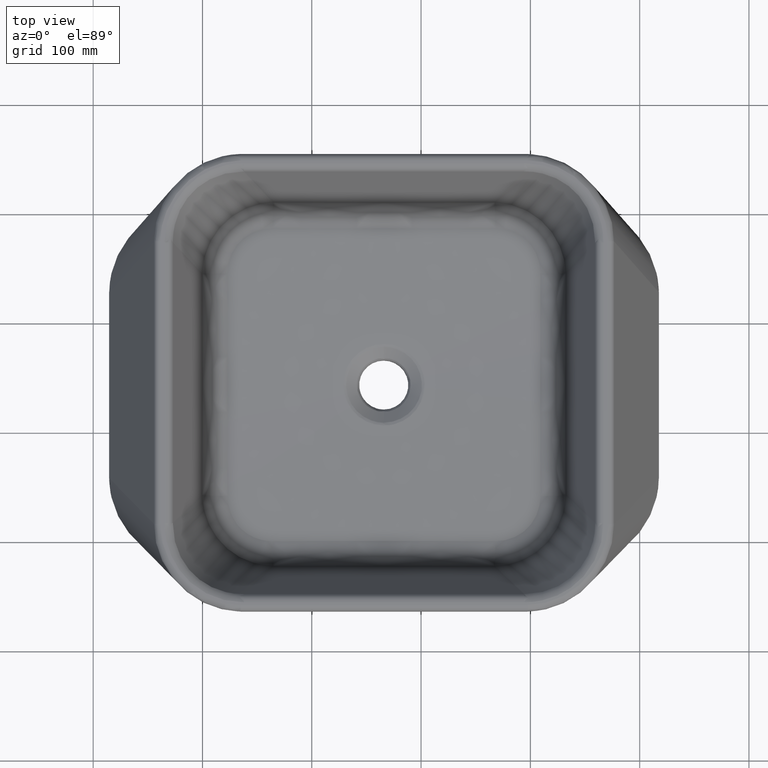
[diagram: clean part render]
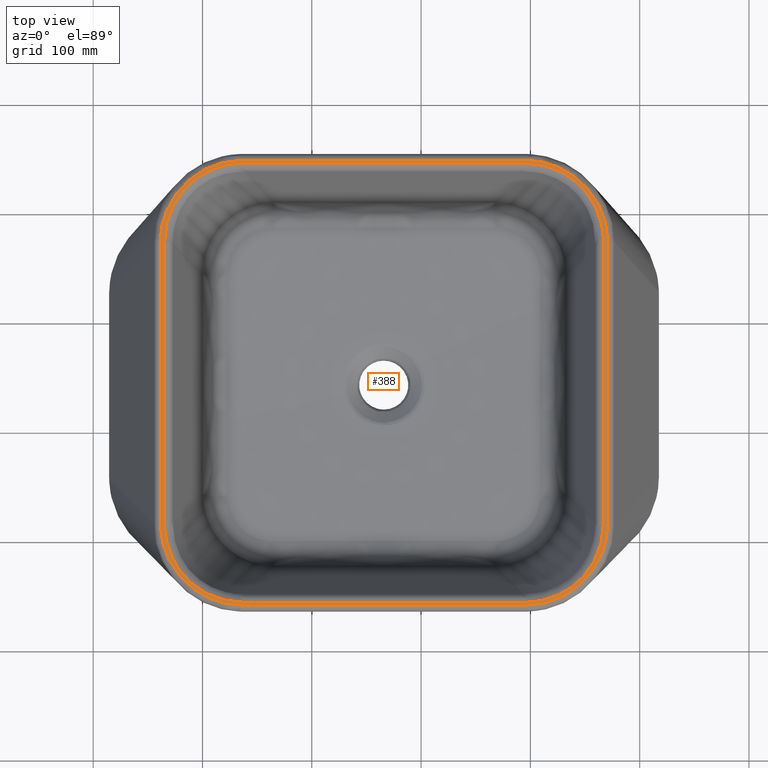
[diagram: same view with one face highlighted and labeled with its STEP entity id]
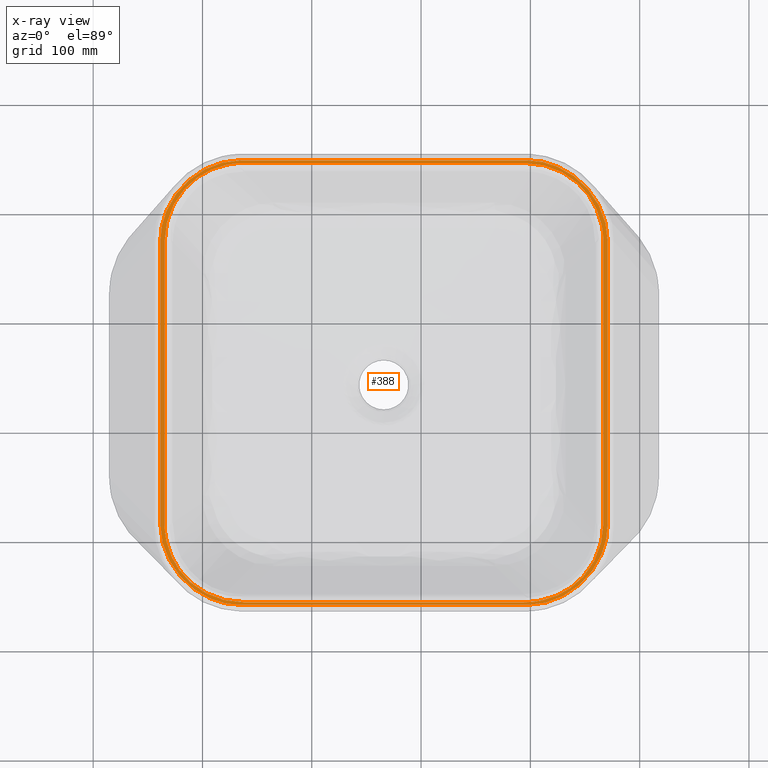
[diagram: x-ray of the same camera — body ghosted, the highlighted face saturated]
A machine part, top view. The second image highlights one B-rep face of the part: STEP entity #388.
The next image is the same camera in x-ray: the body ghosted, the highlighted face saturated — about 0% of this face is hidden behind the body in this view.
In plain terms, the highlighted planar face has unit normal (0, 0, 1).
Its self-contained STEP definition (entity closure, byte-faithful):
#266=PLANE('',#1266);
#280=ELLIPSE('',#1258,70.4603313194771,64.);
#281=ELLIPSE('',#1259,70.4603313194771,64.);
#282=ELLIPSE('',#1260,70.4603313194771,64.);
#283=ELLIPSE('',#1261,70.4603313194771,64.);
#284=ELLIPSE('',#1262,82.8872043403412,76.);
#285=ELLIPSE('',#1263,82.934540662591,76.);
#286=ELLIPSE('',#1264,82.934540662591,76.);
#287=ELLIPSE('',#1265,82.8872043403412,76.);
#312=LINE('',#2639,#352);
#313=LINE('',#2644,#353);
#314=LINE('',#2648,#354);
#315=LINE('',#2652,#355);
#316=LINE('',#2655,#356);
#317=LINE('',#2660,#357);
#318=LINE('',#2664,#358);
#319=LINE('',#2668,#359);
#352=VECTOR('',#1386,1.);
#353=VECTOR('',#1389,1.);
#354=VECTOR('',#1392,1.);
#355=VECTOR('',#1395,1.);
#356=VECTOR('',#1398,1.);
#357=VECTOR('',#1401,1.);
#358=VECTOR('',#1404,1.);
#359=VECTOR('',#1407,1.);
#388=ADVANCED_FACE('',(#467,#468),#266,.T.);
#467=FACE_BOUND('',#489,.T.);
#468=FACE_BOUND('',#490,.T.);
#489=EDGE_LOOP('',(#623,#624,#625,#626,#627,#628,#629,#630));
#490=EDGE_LOOP('',(#631,#632,#633,#634,#635,#636,#637,#638));
#623=ORIENTED_EDGE('',*,*,#1053,.T.);
#624=ORIENTED_EDGE('',*,*,#1054,.T.);
#625=ORIENTED_EDGE('',*,*,#1055,.T.);
#626=ORIENTED_EDGE('',*,*,#1056,.T.);
#627=ORIENTED_EDGE('',*,*,#1057,.T.);
#628=ORIENTED_EDGE('',*,*,#1058,.T.);
#629=ORIENTED_EDGE('',*,*,#1059,.T.);
#630=ORIENTED_EDGE('',*,*,#1060,.T.);
#631=ORIENTED_EDGE('',*,*,#1061,.T.);
#632=ORIENTED_EDGE('',*,*,#1062,.T.);
#633=ORIENTED_EDGE('',*,*,#1063,.T.);
#634=ORIENTED_EDGE('',*,*,#1064,.T.);
#635=ORIENTED_EDGE('',*,*,#1065,.T.);
#636=ORIENTED_EDGE('',*,*,#1066,.T.);
#637=ORIENTED_EDGE('',*,*,#1067,.T.);
#638=ORIENTED_EDGE('',*,*,#1068,.T.);
#943=VERTEX_POINT('',#2640);
#944=VERTEX_POINT('',#2641);
#945=VERTEX_POINT('',#2643);
#946=VERTEX_POINT('',#2645);
#947=VERTEX_POINT('',#2647);
#948=VERTEX_POINT('',#2649);
#949=VERTEX_POINT('',#2651);
#950=VERTEX_POINT('',#2653);
#951=VERTEX_POINT('',#2656);
#952=VERTEX_POINT('',#2657);
#953=VERTEX_POINT('',#2659);
#954=VERTEX_POINT('',#2661);
#955=VERTEX_POINT('',#2663);
#956=VERTEX_POINT('',#2665);
#957=VERTEX_POINT('',#2667);
#958=VERTEX_POINT('',#2669);
#1053=EDGE_CURVE('',#943,#944,#312,.T.);
#1054=EDGE_CURVE('',#944,#945,#280,.T.);
#1055=EDGE_CURVE('',#945,#946,#313,.T.);
#1056=EDGE_CURVE('',#946,#947,#281,.T.);
#1057=EDGE_CURVE('',#947,#948,#314,.T.);
#1058=EDGE_CURVE('',#948,#949,#282,.T.);
#1059=EDGE_CURVE('',#949,#950,#315,.T.);
#1060=EDGE_CURVE('',#950,#943,#283,.T.);
#1061=EDGE_CURVE('',#951,#952,#316,.T.);
#1062=EDGE_CURVE('',#952,#953,#284,.T.);
#1063=EDGE_CURVE('',#953,#954,#317,.T.);
#1064=EDGE_CURVE('',#954,#955,#285,.T.);
#1065=EDGE_CURVE('',#955,#956,#318,.T.);
#1066=EDGE_CURVE('',#956,#957,#286,.T.);
#1067=EDGE_CURVE('',#957,#958,#319,.T.);
#1068=EDGE_CURVE('',#958,#951,#287,.T.);
#1258=AXIS2_PLACEMENT_3D('',#2642,#1387,#1388);
#1259=AXIS2_PLACEMENT_3D('',#2646,#1390,#1391);
#1260=AXIS2_PLACEMENT_3D('',#2650,#1393,#1394);
#1261=AXIS2_PLACEMENT_3D('',#2654,#1396,#1397);
#1262=AXIS2_PLACEMENT_3D('',#2658,#1399,#1400);
#1263=AXIS2_PLACEMENT_3D('',#2662,#1402,#1403);
#1264=AXIS2_PLACEMENT_3D('',#2666,#1405,#1406);
#1265=AXIS2_PLACEMENT_3D('',#2670,#1408,#1409);
#1266=AXIS2_PLACEMENT_3D('',#2671,#1410,#1411);
#1386=DIRECTION('',(0.,1.,0.));
#1387=DIRECTION('',(0.,0.,-1.));
#1388=DIRECTION('',(-0.73373421465365,-0.679436606495846,0.));
#1389=DIRECTION('',(1.,2.20046511983548E-017,0.));
#1390=DIRECTION('',(0.,0.,-1.));
#1391=DIRECTION('',(0.73373421465365,-0.679436606495846,0.));
#1392=DIRECTION('',(0.,-1.,0.));
#1393=DIRECTION('',(0.,0.,-1.));
#1394=DIRECTION('',(0.73373421465365,0.679436606495846,0.));
#1395=DIRECTION('',(-1.,2.20046511983548E-017,0.));
#1396=DIRECTION('',(0.,0.,-1.));
#1397=DIRECTION('',(-0.73373421465365,0.679436606495846,0.));
#1398=DIRECTION('',(0.,-1.,0.));
#1399=DIRECTION('',(0.,0.,1.));
#1400=DIRECTION('',(0.707106781186548,0.707106781186548,0.));
#1401=DIRECTION('',(1.,0.,0.));
#1402=DIRECTION('',(0.,0.,1.));
#1403=DIRECTION('',(-0.709620309660459,0.704584286027863,0.));
#1404=DIRECTION('',(0.,1.,0.));
#1405=DIRECTION('',(0.,0.,1.));
#1406=DIRECTION('',(-0.709620309660459,-0.704584286027863,0.));
#1407=DIRECTION('',(-1.,0.,0.));
#1408=DIRECTION('',(0.,0.,1.));
#1409=DIRECTION('',(0.707106781186548,-0.707106781186548,0.));
#1410=DIRECTION('',(0.,0.,-1.));
#1411=DIRECTION('',(-1.,0.,0.));
#2639=CARTESIAN_POINT('',(66.4682606130597,-603.955383724924,89.1899093811709));
#2640=CARTESIAN_POINT('',(66.4682606130597,-1007.42526173303,89.1899093811709));
#2641=CARTESIAN_POINT('',(66.4682606130597,-744.985505716817,89.1899093811709));
#2642=CARTESIAN_POINT('',(134.023097597162,-738.575178021063,89.1899093811709));
#2643=CARTESIAN_POINT('',(140.480756880332,-671.515486031748,89.1899093811709));
#2644=CARTESIAN_POINT('',(481.607617568872,-671.515486031748,89.1899093811709));
#2645=CARTESIAN_POINT('',(399.234478257414,-671.515486031748,89.1899093811709));
#2646=CARTESIAN_POINT('',(405.692137540583,-738.575178021063,89.1899093811709));
#2647=CARTESIAN_POINT('',(473.246974524686,-744.985505716817,89.1899093811709));
#2648=CARTESIAN_POINT('',(473.246974524686,-603.955383724924,89.1899093811709));
#2649=CARTESIAN_POINT('',(473.246974524686,-1007.42526173303,89.1899093811709));
#2650=CARTESIAN_POINT('',(405.692137540583,-1013.83558942879,89.1899093811709));
#2651=CARTESIAN_POINT('',(399.234478257414,-1080.8952814181,89.1899093811709));
#2652=CARTESIAN_POINT('',(481.607617568872,-1080.8952814181,89.1899093811709));
#2653=CARTESIAN_POINT('',(140.480756880332,-1080.8952814181,89.1899093811709));
#2654=CARTESIAN_POINT('',(134.023097597162,-1013.83558942879,89.1899093811709));
#2655=CARTESIAN_POINT('',(68.8477057957095,-603.955383724924,89.1899093811709));
#2656=CARTESIAN_POINT('',(68.8477057957095,-748.017872974446,89.1899093811709));
#2657=CARTESIAN_POINT('',(68.8477057957095,-1004.3928944754,89.1899093811709));
#2658=CARTESIAN_POINT('',(148.365906993163,-997.512151281524,89.1899093811709));
#2659=CARTESIAN_POINT('',(141.485163799286,-1077.03035247898,89.1899093811709));
#2660=CARTESIAN_POINT('',(481.607617568872,-1077.03035247898,89.1899093811709));
#2661=CARTESIAN_POINT('',(398.225945721528,-1077.03035247898,89.1899093811709));
#2662=CARTESIAN_POINT('',(391.296022342936,-997.512151281524,89.1899093811709));
#2663=CARTESIAN_POINT('',(470.863564175245,-1004.43777734477,89.1899093811709));
#2664=CARTESIAN_POINT('',(470.863564175245,-603.955383724924,89.1899093811709));
#2665=CARTESIAN_POINT('',(470.863564175245,-747.972990105082,89.1899093811709));
#2666=CARTESIAN_POINT('',(391.296022342936,-754.898616168323,89.1899093811709));
#2667=CARTESIAN_POINT('',(398.225945721528,-675.380414970869,89.1899093811709));
#2668=CARTESIAN_POINT('',(481.607617568872,-675.380414970869,89.1899093811709));
#2669=CARTESIAN_POINT('',(141.485163799286,-675.380414970869,89.1899093811709));
#2670=CARTESIAN_POINT('',(148.365906993163,-754.898616168323,89.1899093811709));
#2671=CARTESIAN_POINT('',(481.607617568872,-603.955383724924,89.1899093811709));